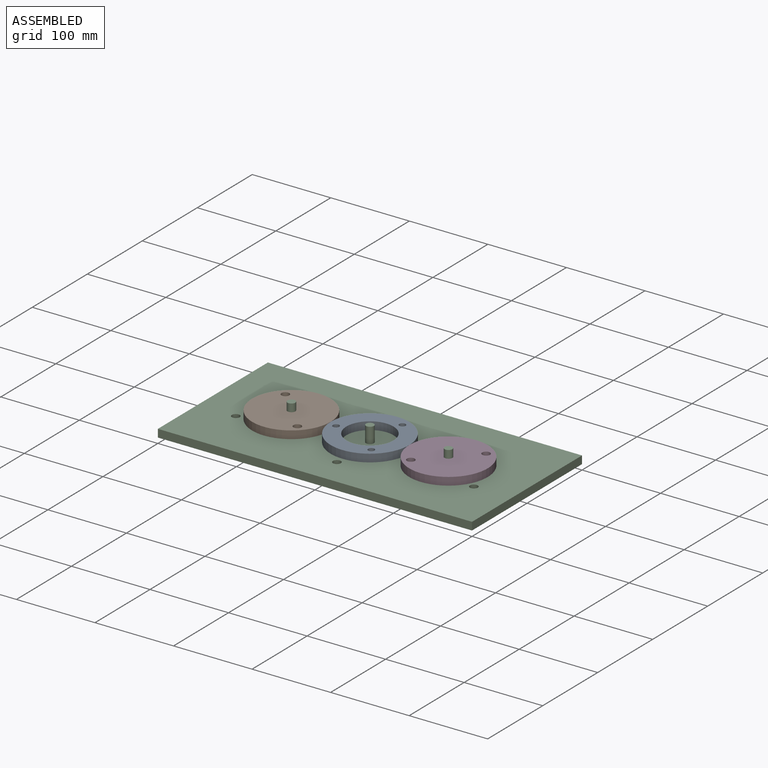
[diagram: assembled view]
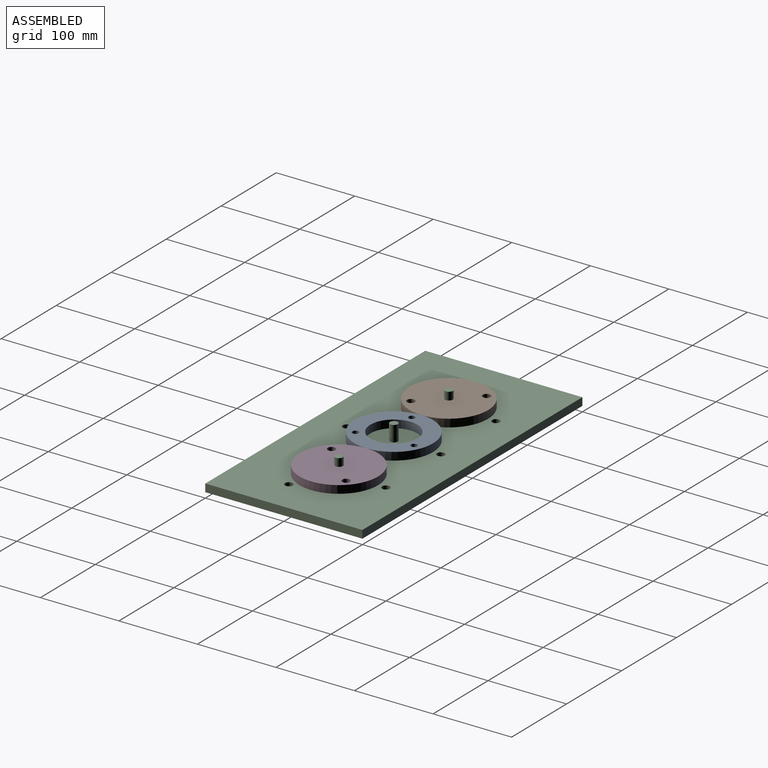
[diagram: assembled view, second angle]
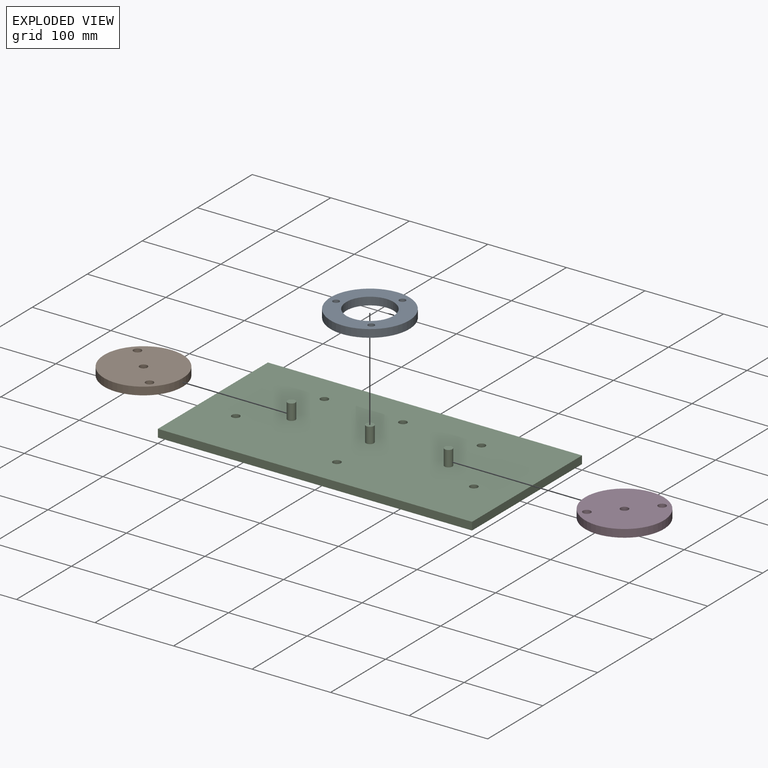
[diagram: exploded view]
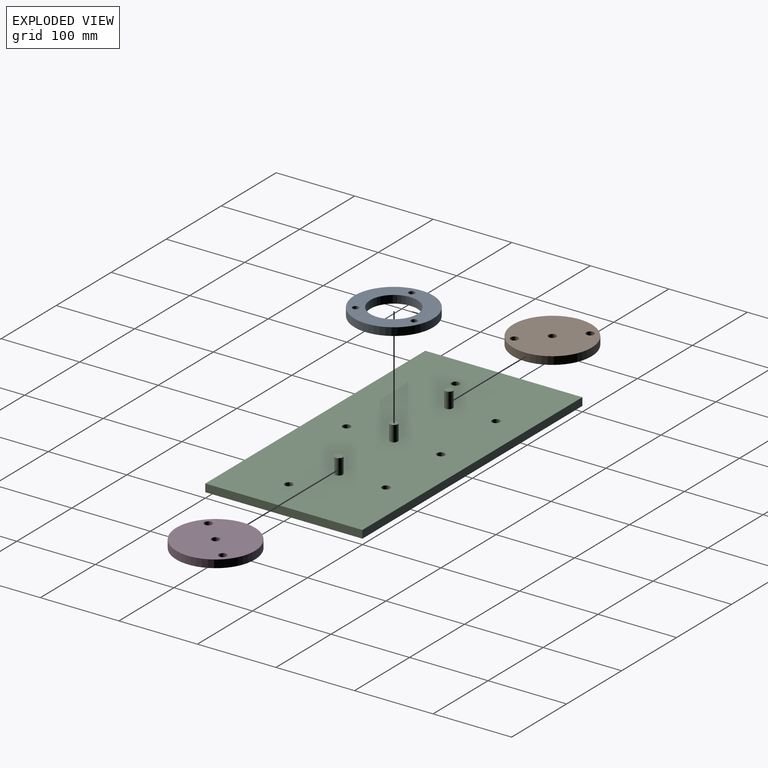
[diagram: exploded view, second angle]
ASSEMBLY  parts=4 mates=3
PART A: 7 faces, bbox 100x100x10 mm
  f0: cylinder r=30mm len=60mm, axis (0,0,-1), area 1885mm2, adj f2,f3
  f1: cylinder r=50mm len=100mm, axis (0,0,-1), area 3141.6mm2, adj f2,f3
  f2: plane 100x100mm, normal (0,0,1), area 4875.8mm2, adj f0,f1,f4,f5,f6
  f3: plane 100x100mm, normal (0,0,-1), area 4875.8mm2, adj f0,f1,f4,f5,f6
  f4: cylinder r=4mm len=10mm, axis (0,0,1), area 251.3mm2, adj f2,f3
  f5: cylinder r=4mm len=10mm, axis (0,0,1), area 251.3mm2, adj f2,f3
  f6: cylinder r=4mm len=10mm, axis (0,0,1), area 251.3mm2, adj f2,f3
PART B: 6 faces, bbox 100x100x10 mm
  f0: cylinder r=5mm len=10mm, axis (0,0,-1), area 314.2mm2, adj f4,f5
  f1: cylinder r=5mm len=10mm, axis (0,0,-1), area 314.2mm2, adj f4,f5
  f2: cylinder r=5mm len=10mm, axis (0,0,-1), area 314.2mm2, adj f4,f5
  f3: cylinder r=50mm len=100mm, axis (0,0,-1), area 3141.6mm2, adj f4,f5
  f4: plane 100x100mm, normal (0,0,1), area 7618.4mm2, adj f0,f1,f2,f3
  f5: plane 100x100mm, normal (0,0,-1), area 7618.4mm2, adj f0,f1,f2,f3
PART C: 18 faces, bbox 400x200x30 mm
  f0: plane 200x10mm, normal (-1,0,0), area 2000mm2, adj f1,f8,f10,f11
  f1: plane 400x10mm, normal (0,-1,0), area 4000mm2, adj f0,f2,f10,f11
  f2: plane 200x10mm, normal (1,0,0), area 2000mm2, adj f1,f8,f10,f11
  f3: cylinder r=5mm len=10mm, axis (0,0,-1), area 314.2mm2, adj f10,f11
  f4: cylinder r=5mm len=10mm, axis (0,0,-1), area 314.2mm2, adj f10,f11
  f5: cylinder r=5mm len=10mm, axis (0,0,-1), area 314.2mm2, adj f10,f11
  f6: cylinder r=5mm len=10mm, axis (0,0,-1), area 314.2mm2, adj f10,f11
  f7: cylinder r=5mm len=10mm, axis (0,0,-1), area 314.2mm2, adj f10,f11
  f8: plane 400x10mm, normal (0,1,0), area 4000mm2, adj f0,f2,f10,f11
  f9: cylinder r=5mm len=10mm, axis (0,0,-1), area 314.2mm2, adj f10,f11
  f10: plane 400x200mm, normal (0,0,1), area 79293.1mm2, adj f0,f1,f2,f3,f4,f5,f6,f7
  f11: plane 400x200mm, normal (0,0,-1), area 79528.8mm2, adj f0,f1,f2,f3,f4,f5,f6,f7
  f12: cylinder r=5mm len=20mm, axis (0,0,-1), area 628.3mm2, adj f10,f13
  f13: plane 10x10mm, normal (0,0,1), area 78.5mm2, adj f12
  f14: cylinder r=5mm len=20mm, axis (0,0,-1), area 628.3mm2, adj f10,f15
  f15: plane 10x10mm, normal (0,0,1), area 78.5mm2, adj f14
  f16: cylinder r=5mm len=20mm, axis (0,0,-1), area 628.3mm2, adj f10,f17
  f17: plane 10x10mm, normal (0,0,1), area 78.5mm2, adj f16
PART D: same geometry as B
PLACE A rot(axis=(-0.2,-0.98,0),180deg) t=(0,0,20)mm
PLACE B rot(axis=(0.93,0.37,0),180deg) t=(-100,0,20)mm
PLACE C at identity fixed
PLACE D rot(axis=(-0.37,-0.93,0),180deg) t=(100,0,20)mm
MATE revolute D.f3 <-> C.f16  axis (0,0,-1) through (100,0,10)mm
MATE revolute A.f1 <-> C.f12  axis (0,0,-1) through (0,0,10)mm
MATE revolute B.f3 <-> C.f14  axis (0,0,-1) through (-100,0,10)mm
